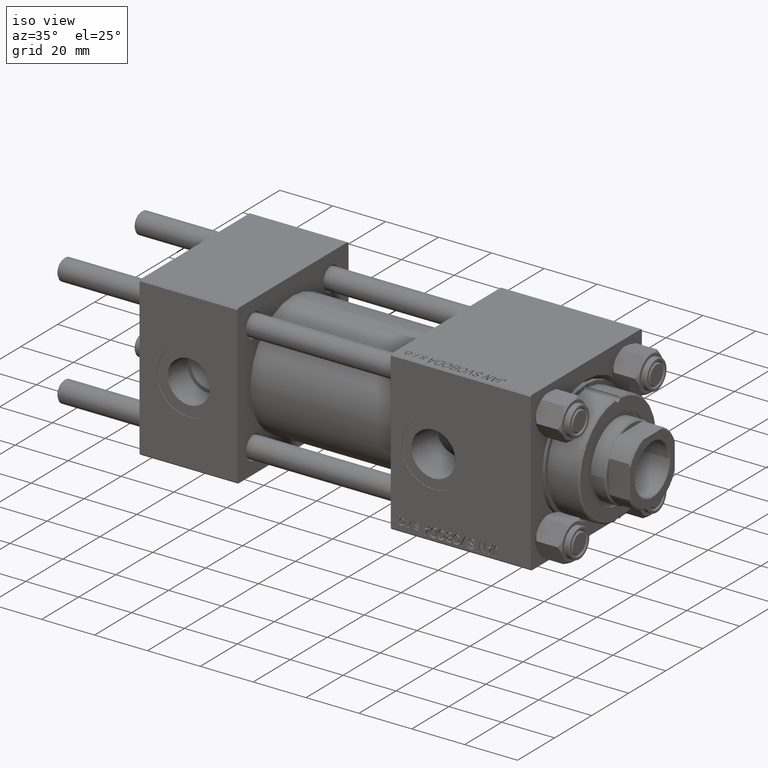
[diagram: clean part render]
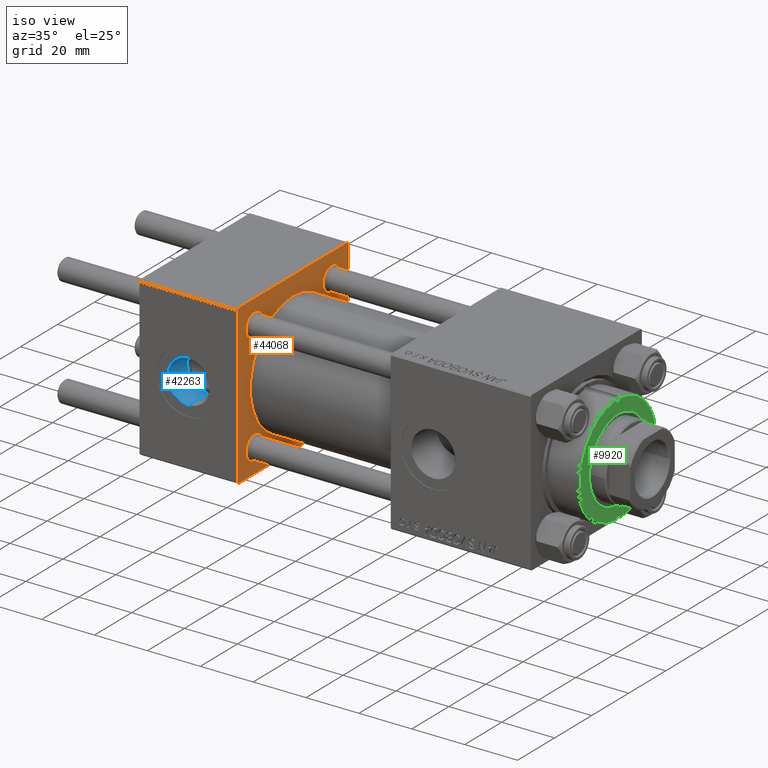
[diagram: same view with three faces highlighted in distinct colors, each labeled with its STEP entity id]
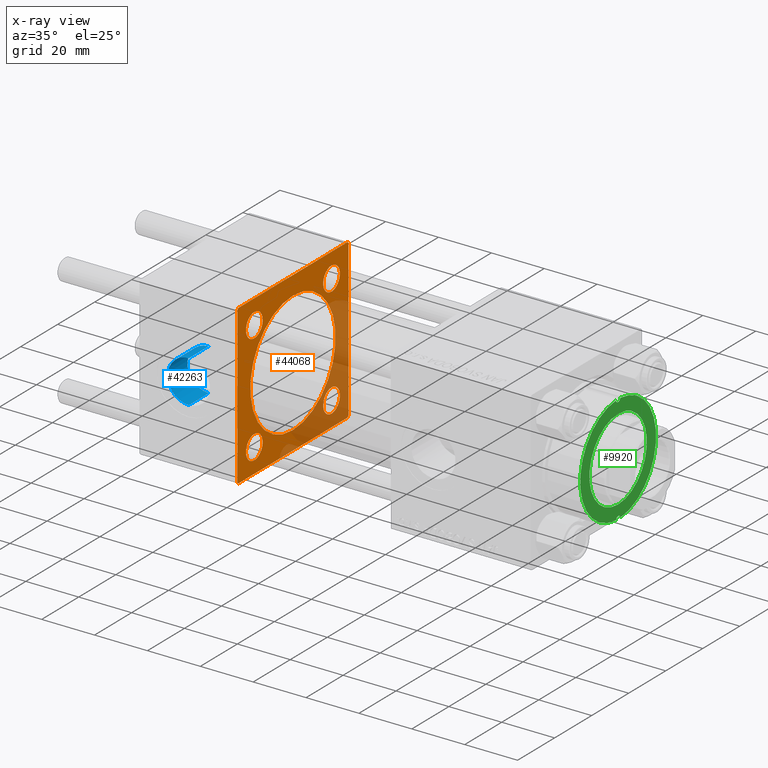
[diagram: x-ray of the same camera — body ghosted, the three highlighted faces saturated]
A machine part, iso view with three faces highlighted in distinct colors.
The next image is the same camera in x-ray (body ghosted, the three faces saturated) — at least one of them is partly hidden behind the body in this view.
Their STEP definitions:

[orange] entity #44068 — the highlighted planar face has unit normal (-1, 0, 0).
#348 = AXIS2_PLACEMENT_3D ( 'NONE', #26246, #2515, #30987 ) ;
#523 = VERTEX_POINT ( 'NONE', #8049 ) ;
#789 = CARTESIAN_POINT ( 'NONE',  ( 37.00000000000000000, -30.00000000000000000, 29.49999999999999289 ) ) ;
#1024 = VERTEX_POINT ( 'NONE', #16044 ) ;
#1230 = CARTESIAN_POINT ( 'NONE',  ( 37.00000000000000000, 0.000000000000000000, 0.000000000000000000 ) ) ;
#1411 = CARTESIAN_POINT ( 'NONE',  ( 37.00000000000000000, 20.84999999999999787, 20.85000000000000142 ) ) ;
#1543 = CARTESIAN_POINT ( 'NONE',  ( 37.00000000000000000, -20.84999999999999076, -25.34999999999999432 ) ) ;
#1676 = DIRECTION ( 'NONE',  ( -1.000000000000000000, 0.000000000000000000, -0.000000000000000000 ) ) ;
#1684 = CARTESIAN_POINT ( 'NONE',  ( 37.00000000000000000, 20.84999999999999787, -20.85000000000000142 ) ) ;
#2036 = AXIS2_PLACEMENT_3D ( 'NONE', #46725, #14805, #17986 ) ;
#2411 = EDGE_CURVE ( 'NONE', #46615, #45496, #8003, .T. ) ;
#2445 = CARTESIAN_POINT ( 'NONE',  ( 37.00000000000000000, 20.84999999999999787, 25.34999999999999076 ) ) ;
#2515 = DIRECTION ( 'NONE',  ( -1.000000000000000000, 0.000000000000000000, -0.000000000000000000 ) ) ;
#2777 = FACE_BOUND ( 'NONE', #46162, .T. ) ;
#4163 = CARTESIAN_POINT ( 'NONE',  ( 37.00000000000000000, -29.49999999999998579, 29.99999999999999289 ) ) ;
#4264 = LINE ( 'NONE', #8492, #27044 ) ;
#4334 = ORIENTED_EDGE ( 'NONE', *, *, #34177, .T. ) ;
#5089 = LINE ( 'NONE', #36743, #35167 ) ;
#5907 = AXIS2_PLACEMENT_3D ( 'NONE', #29103, #9083, #25939 ) ;
#5980 = AXIS2_PLACEMENT_3D ( 'NONE', #48036, #47004, #6919 ) ;
#6106 = CARTESIAN_POINT ( 'NONE',  ( 37.00000000000000000, 29.49999999999997868, -30.00000000000000000 ) ) ;
#6760 = DIRECTION ( 'NONE',  ( 0.000000000000000000, -1.000000000000000000, -1.156482317317871725E-16 ) ) ;
#6919 = DIRECTION ( 'NONE',  ( 0.000000000000000000, 0.000000000000000000, 1.000000000000000000 ) ) ;
#7030 = EDGE_CURVE ( 'NONE', #14187, #28483, #10064, .T. ) ;
#7264 = CIRCLE ( 'NONE', #16527, 4.499999999999990230 ) ;
#7563 = CARTESIAN_POINT ( 'NONE',  ( 37.00000000000000000, -30.00000000000000000, -29.50000000000001776 ) ) ;
#7809 = ORIENTED_EDGE ( 'NONE', *, *, #47069, .T. ) ;
#8003 = LINE ( 'NONE', #15405, #52035 ) ;
#8049 = CARTESIAN_POINT ( 'NONE',  ( 37.00000000000000000, 29.49999999999999289, 30.00000000000000000 ) ) ;
#8492 = CARTESIAN_POINT ( 'NONE',  ( 37.00000000000000000, -29.50000000000001066, -30.00000000000000711 ) ) ;
#9083 = DIRECTION ( 'NONE',  ( -1.000000000000000000, 0.000000000000000000, -0.000000000000000000 ) ) ;
#9333 = CARTESIAN_POINT ( 'NONE',  ( 37.00000000000000000, 20.84999999999999787, 16.35000000000001208 ) ) ;
#9379 = DIRECTION ( 'NONE',  ( 0.000000000000000000, 0.000000000000000000, 1.000000000000000000 ) ) ;
#10064 = CIRCLE ( 'NONE', #33663, 4.499999999999990230 ) ;
#10129 = CIRCLE ( 'NONE', #5907, 4.499999999999990230 ) ;
#10286 = ORIENTED_EDGE ( 'NONE', *, *, #18652, .F. ) ;
#10342 = EDGE_CURVE ( 'NONE', #1024, #15810, #23402, .T. ) ;
#11181 = DIRECTION ( 'NONE',  ( 0.000000000000000000, -0.7071067811865474617, 0.7071067811865474617 ) ) ;
#11526 = CARTESIAN_POINT ( 'NONE',  ( 37.00000000000000000, 29.99999999999999289, 30.00000000000000000 ) ) ;
#12466 = VERTEX_POINT ( 'NONE', #2445 ) ;
#12725 = VECTOR ( 'NONE', #37483, 1000.000000000000000 ) ;
#12956 = VERTEX_POINT ( 'NONE', #7563 ) ;
#13109 = DIRECTION ( 'NONE',  ( 0.000000000000000000, 0.000000000000000000, 1.000000000000000000 ) ) ;
#13255 = VECTOR ( 'NONE', #11181, 1000.000000000000114 ) ;
#13909 = ORIENTED_EDGE ( 'NONE', *, *, #21364, .F. ) ;
#13955 = AXIS2_PLACEMENT_3D ( 'NONE', #32307, #48933, #9379 ) ;
#14187 = VERTEX_POINT ( 'NONE', #20500 ) ;
#14263 = VERTEX_POINT ( 'NONE', #21542 ) ;
#14330 = EDGE_LOOP ( 'NONE', ( #32341, #13909 ) ) ;
#14348 = DIRECTION ( 'NONE',  ( -1.000000000000000000, 0.000000000000000000, -0.000000000000000000 ) ) ;
#14805 = DIRECTION ( 'NONE',  ( 1.000000000000000000, -0.000000000000000000, 0.000000000000000000 ) ) ;
#14905 = PLANE ( 'NONE',  #348 ) ;
#14945 = EDGE_CURVE ( 'NONE', #43884, #29849, #42456, .T. ) ;
#15405 = CARTESIAN_POINT ( 'NONE',  ( 37.00000000000000000, -30.00000000000000000, 29.49999999999999289 ) ) ;
#15561 = AXIS2_PLACEMENT_3D ( 'NONE', #23230, #47491, #48014 ) ;
#15810 = VERTEX_POINT ( 'NONE', #37516 ) ;
#15896 = EDGE_LOOP ( 'NONE', ( #10286, #37293, #25376, #24816, #28588, #39053, #17239, #32371 ) ) ;
#16044 = CARTESIAN_POINT ( 'NONE',  ( 37.00000000000000000, 29.99999999999999289, 29.50000000000000000 ) ) ;
#16527 = AXIS2_PLACEMENT_3D ( 'NONE', #31443, #50984, #35669 ) ;
#17216 = CARTESIAN_POINT ( 'NONE',  ( 37.00000000000000000, -20.84999999999999076, 25.34999999999999432 ) ) ;
#17239 = ORIENTED_EDGE ( 'NONE', *, *, #38278, .T. ) ;
#17725 = ORIENTED_EDGE ( 'NONE', *, *, #32177, .T. ) ;
#17761 = DIRECTION ( 'NONE',  ( 0.000000000000000000, 0.000000000000000000, 1.000000000000000000 ) ) ;
#17986 = DIRECTION ( 'NONE',  ( 0.000000000000000000, 0.000000000000000000, 1.000000000000000000 ) ) ;
#18097 = LINE ( 'NONE', #42876, #20057 ) ;
#18188 = VERTEX_POINT ( 'NONE', #6106 ) ;
#18267 = CIRCLE ( 'NONE', #51956, 23.00000000000000000 ) ;
#18482 = CIRCLE ( 'NONE', #20169, 4.499999999999990230 ) ;
#18652 = EDGE_CURVE ( 'NONE', #18188, #20562, #20501, .T. ) ;
#18738 = DIRECTION ( 'NONE',  ( 0.000000000000000000, 0.000000000000000000, 1.000000000000000000 ) ) ;
#18946 = EDGE_LOOP ( 'NONE', ( #44505, #22337 ) ) ;
#20057 = VECTOR ( 'NONE', #6760, 1000.000000000000000 ) ;
#20169 = AXIS2_PLACEMENT_3D ( 'NONE', #1411, #1676, #17761 ) ;
#20500 = CARTESIAN_POINT ( 'NONE',  ( 37.00000000000000000, 20.84999999999999787, -16.35000000000001208 ) ) ;
#20501 = LINE ( 'NONE', #32106, #45140 ) ;
#20562 = VERTEX_POINT ( 'NONE', #45216 ) ;
#20668 = EDGE_CURVE ( 'NONE', #40487, #14263, #7264, .T. ) ;
#21364 = EDGE_CURVE ( 'NONE', #29849, #43884, #18267, .T. ) ;
#21542 = CARTESIAN_POINT ( 'NONE',  ( 37.00000000000000000, -20.84999999999999076, 16.35000000000001208 ) ) ;
#21841 = VECTOR ( 'NONE', #27864, 1000.000000000000000 ) ;
#21987 = CIRCLE ( 'NONE', #5980, 4.499999999999990230 ) ;
#22337 = ORIENTED_EDGE ( 'NONE', *, *, #20668, .T. ) ;
#22424 = CARTESIAN_POINT ( 'NONE',  ( 37.00000000000000000, 20.84999999999999787, -20.85000000000000142 ) ) ;
#22497 = DIRECTION ( 'NONE',  ( 0.000000000000000000, 0.000000000000000000, 1.000000000000000000 ) ) ;
#23065 = FACE_BOUND ( 'NONE', #33152, .T. ) ;
#23230 = CARTESIAN_POINT ( 'NONE',  ( 37.00000000000000000, -20.84999999999999076, 20.85000000000000497 ) ) ;
#23402 = LINE ( 'NONE', #11526, #21841 ) ;
#23934 = DIRECTION ( 'NONE',  ( 0.000000000000000000, -1.000000000000000000, -1.156482317317871725E-16 ) ) ;
#24816 = ORIENTED_EDGE ( 'NONE', *, *, #25688, .T. ) ;
#25376 = ORIENTED_EDGE ( 'NONE', *, *, #10342, .F. ) ;
#25688 = EDGE_CURVE ( 'NONE', #1024, #523, #35185, .T. ) ;
#25939 = DIRECTION ( 'NONE',  ( 0.000000000000000000, 0.000000000000000000, 1.000000000000000000 ) ) ;
#26246 = CARTESIAN_POINT ( 'NONE',  ( 37.00000000000000000, 0.000000000000000000, 0.000000000000000000 ) ) ;
#26533 = EDGE_CURVE ( 'NONE', #18188, #15810, #5089, .T. ) ;
#27044 = VECTOR ( 'NONE', #40654, 1000.000000000000114 ) ;
#27269 = FACE_BOUND ( 'NONE', #14330, .T. ) ;
#27760 = AXIS2_PLACEMENT_3D ( 'NONE', #1684, #14348, #22497 ) ;
#27864 = DIRECTION ( 'NONE',  ( 0.000000000000000000, 0.000000000000000000, -1.000000000000000000 ) ) ;
#27878 = EDGE_CURVE ( 'NONE', #523, #46615, #18097, .T. ) ;
#28483 = VERTEX_POINT ( 'NONE', #46405 ) ;
#28582 = CARTESIAN_POINT ( 'NONE',  ( 37.00000000000000000, -20.84999999999999076, -16.35000000000001208 ) ) ;
#28588 = ORIENTED_EDGE ( 'NONE', *, *, #27878, .T. ) ;
#29103 = CARTESIAN_POINT ( 'NONE',  ( 37.00000000000000000, 20.84999999999999787, 20.85000000000000142 ) ) ;
#29849 = VERTEX_POINT ( 'NONE', #36539 ) ;
#30090 = DIRECTION ( 'NONE',  ( -1.000000000000000000, 0.000000000000000000, -0.000000000000000000 ) ) ;
#30987 = DIRECTION ( 'NONE',  ( -0.000000000000000000, 0.000000000000000000, 1.000000000000000000 ) ) ;
#31140 = EDGE_CURVE ( 'NONE', #12466, #35189, #18482, .T. ) ;
#31397 = VERTEX_POINT ( 'NONE', #1543 ) ;
#31443 = CARTESIAN_POINT ( 'NONE',  ( 37.00000000000000000, -20.84999999999999076, 20.85000000000000497 ) ) ;
#31546 = CIRCLE ( 'NONE', #15561, 4.499999999999990230 ) ;
#32106 = CARTESIAN_POINT ( 'NONE',  ( 37.00000000000000000, 29.99999999999999289, -30.00000000000000000 ) ) ;
#32177 = EDGE_CURVE ( 'NONE', #28483, #14187, #47167, .T. ) ;
#32307 = CARTESIAN_POINT ( 'NONE',  ( 37.00000000000000000, -20.84999999999999076, -20.85000000000000497 ) ) ;
#32341 = ORIENTED_EDGE ( 'NONE', *, *, #14945, .F. ) ;
#32371 = ORIENTED_EDGE ( 'NONE', *, *, #38107, .T. ) ;
#33137 = DIRECTION ( 'NONE',  ( 1.000000000000000000, -0.000000000000000000, 0.000000000000000000 ) ) ;
#33152 = EDGE_LOOP ( 'NONE', ( #17725, #43801 ) ) ;
#33256 = LINE ( 'NONE', #45408, #12725 ) ;
#33663 = AXIS2_PLACEMENT_3D ( 'NONE', #22424, #30090, #18738 ) ;
#34177 = EDGE_CURVE ( 'NONE', #35930, #31397, #21987, .T. ) ;
#35167 = VECTOR ( 'NONE', #49124, 999.9999999999998863 ) ;
#35185 = LINE ( 'NONE', #47311, #13255 ) ;
#35189 = VERTEX_POINT ( 'NONE', #9333 ) ;
#35669 = DIRECTION ( 'NONE',  ( 0.000000000000000000, 0.000000000000000000, 1.000000000000000000 ) ) ;
#35930 = VERTEX_POINT ( 'NONE', #28582 ) ;
#35985 = EDGE_CURVE ( 'NONE', #35189, #12466, #10129, .T. ) ;
#36539 = CARTESIAN_POINT ( 'NONE',  ( 37.00000000000000000, 2.816687638038911957E-15, -23.00000000000000000 ) ) ;
#36743 = CARTESIAN_POINT ( 'NONE',  ( 37.00000000000000000, 29.99999999999999289, -29.50000000000000000 ) ) ;
#37293 = ORIENTED_EDGE ( 'NONE', *, *, #26533, .T. ) ;
#37483 = DIRECTION ( 'NONE',  ( 0.000000000000000000, 0.000000000000000000, -1.000000000000000000 ) ) ;
#37516 = CARTESIAN_POINT ( 'NONE',  ( 37.00000000000000000, 29.99999999999999289, -29.50000000000000000 ) ) ;
#38107 = EDGE_CURVE ( 'NONE', #12956, #20562, #4264, .T. ) ;
#38278 = EDGE_CURVE ( 'NONE', #45496, #12956, #33256, .T. ) ;
#39053 = ORIENTED_EDGE ( 'NONE', *, *, #2411, .T. ) ;
#40081 = ORIENTED_EDGE ( 'NONE', *, *, #35985, .T. ) ;
#40487 = VERTEX_POINT ( 'NONE', #17216 ) ;
#40654 = DIRECTION ( 'NONE',  ( 0.000000000000000000, 0.7071067811865474617, -0.7071067811865474617 ) ) ;
#42456 = CIRCLE ( 'NONE', #2036, 23.00000000000000000 ) ;
#42876 = CARTESIAN_POINT ( 'NONE',  ( 37.00000000000000000, 29.99999999999999289, 30.00000000000000000 ) ) ;
#43113 = FACE_OUTER_BOUND ( 'NONE', #15896, .T. ) ;
#43688 = CARTESIAN_POINT ( 'NONE',  ( 37.00000000000000000, 0.000000000000000000, 23.00000000000000000 ) ) ;
#43801 = ORIENTED_EDGE ( 'NONE', *, *, #7030, .T. ) ;
#43884 = VERTEX_POINT ( 'NONE', #43688 ) ;
#44068 = ADVANCED_FACE ( 'NONE', ( #47338, #23065, #46820, #2777, #27269, #43113 ), #14905, .F. ) ;
#44281 = CIRCLE ( 'NONE', #13955, 4.499999999999990230 ) ;
#44505 = ORIENTED_EDGE ( 'NONE', *, *, #45440, .T. ) ;
#44944 = EDGE_LOOP ( 'NONE', ( #7809, #4334 ) ) ;
#45140 = VECTOR ( 'NONE', #23934, 1000.000000000000000 ) ;
#45216 = CARTESIAN_POINT ( 'NONE',  ( 37.00000000000000000, -29.50000000000000000, -30.00000000000000711 ) ) ;
#45408 = CARTESIAN_POINT ( 'NONE',  ( 37.00000000000000000, -30.00000000000000000, 29.99999999999999289 ) ) ;
#45440 = EDGE_CURVE ( 'NONE', #14263, #40487, #31546, .T. ) ;
#45496 = VERTEX_POINT ( 'NONE', #789 ) ;
#45562 = ORIENTED_EDGE ( 'NONE', *, *, #31140, .T. ) ;
#46162 = EDGE_LOOP ( 'NONE', ( #40081, #45562 ) ) ;
#46405 = CARTESIAN_POINT ( 'NONE',  ( 37.00000000000000000, 20.84999999999999787, -25.34999999999999076 ) ) ;
#46615 = VERTEX_POINT ( 'NONE', #4163 ) ;
#46725 = CARTESIAN_POINT ( 'NONE',  ( 37.00000000000000000, 0.000000000000000000, 0.000000000000000000 ) ) ;
#46820 = FACE_BOUND ( 'NONE', #18946, .T. ) ;
#47004 = DIRECTION ( 'NONE',  ( -1.000000000000000000, 0.000000000000000000, -0.000000000000000000 ) ) ;
#47069 = EDGE_CURVE ( 'NONE', #31397, #35930, #44281, .T. ) ;
#47167 = CIRCLE ( 'NONE', #27760, 4.499999999999990230 ) ;
#47311 = CARTESIAN_POINT ( 'NONE',  ( 37.00000000000000000, 29.49999999999999289, 30.00000000000000000 ) ) ;
#47338 = FACE_BOUND ( 'NONE', #44944, .T. ) ;
#47491 = DIRECTION ( 'NONE',  ( -1.000000000000000000, 0.000000000000000000, -0.000000000000000000 ) ) ;
#48014 = DIRECTION ( 'NONE',  ( 0.000000000000000000, 0.000000000000000000, 1.000000000000000000 ) ) ;
#48036 = CARTESIAN_POINT ( 'NONE',  ( 37.00000000000000000, -20.84999999999999076, -20.85000000000000497 ) ) ;
#48933 = DIRECTION ( 'NONE',  ( -1.000000000000000000, 0.000000000000000000, -0.000000000000000000 ) ) ;
#49124 = DIRECTION ( 'NONE',  ( -0.000000000000000000, 0.7071067811865574537, 0.7071067811865376918 ) ) ;
#50984 = DIRECTION ( 'NONE',  ( -1.000000000000000000, 0.000000000000000000, -0.000000000000000000 ) ) ;
#51956 = AXIS2_PLACEMENT_3D ( 'NONE', #1230, #33137, #13109 ) ;
#52035 = VECTOR ( 'NONE', #52059, 1000.000000000000114 ) ;
#52059 = DIRECTION ( 'NONE',  ( -0.000000000000000000, -0.7071067811865474617, -0.7071067811865474617 ) ) ;

[blue] entity #42263 — the highlighted cylindrical surface (edge-blend (fillet) strip) has radius 8 mm, axis along (-0, -1, -0).
#928 = CARTESIAN_POINT ( 'NONE',  ( 18.50000000000000000, -29.80000000000000071, 8.000000000000001776 ) ) ;
#1568 = CARTESIAN_POINT ( 'NONE',  ( 18.50000000000000000, -19.09999999999999787, 8.000000000000003553 ) ) ;
#1785 = DIRECTION ( 'NONE',  ( 0.000000000000000000, 0.000000000000000000, -1.000000000000000000 ) ) ;
#4344 = CARTESIAN_POINT ( 'NONE',  ( 18.50000000000000000, -19.09999999999999787, -8.000000000000000000 ) ) ;
#8173 = ORIENTED_EDGE ( 'NONE', *, *, #47526, .T. ) ;
#9503 = CARTESIAN_POINT ( 'NONE',  ( 18.50000000000000000, -19.09999999999999787, 9.454242944073598665E-16 ) ) ;
#11194 = CARTESIAN_POINT ( 'NONE',  ( 18.50000000000000000, -19.09999999999999787, 9.454242944073598665E-16 ) ) ;
#11213 = CARTESIAN_POINT ( 'NONE',  ( 18.50000000000000000, -19.09999999999999787, 8.000000000000003553 ) ) ;
#13139 = CIRCLE ( 'NONE', #26639, 8.000000000000001776 ) ;
#15019 = VECTOR ( 'NONE', #51571, 1000.000000000000000 ) ;
#15424 = ORIENTED_EDGE ( 'NONE', *, *, #28014, .F. ) ;
#16539 = EDGE_CURVE ( 'NONE', #48276, #24591, #29052, .T. ) ;
#22873 = EDGE_CURVE ( 'NONE', #25460, #29237, #13139, .T. ) ;
#24058 = VECTOR ( 'NONE', #35237, 1000.000000000000000 ) ;
#24591 = VERTEX_POINT ( 'NONE', #38137 ) ;
#25117 = CARTESIAN_POINT ( 'NONE',  ( 18.50000000000000000, -29.80000000000000071, -8.000000000000001776 ) ) ;
#25460 = VERTEX_POINT ( 'NONE', #928 ) ;
#26097 = DIRECTION ( 'NONE',  ( 0.000000000000000000, 0.000000000000000000, -1.000000000000000000 ) ) ;
#26639 = AXIS2_PLACEMENT_3D ( 'NONE', #46250, #30667, #38312 ) ;
#28014 = EDGE_CURVE ( 'NONE', #24591, #29237, #40471, .T. ) ;
#29052 = CIRCLE ( 'NONE', #37495, 8.000000000000001776 ) ;
#29237 = VERTEX_POINT ( 'NONE', #25117 ) ;
#30667 = DIRECTION ( 'NONE',  ( 0.000000000000000000, -1.000000000000000000, -8.673617379884036705E-17 ) ) ;
#31272 = LINE ( 'NONE', #1568, #24058 ) ;
#34914 = EDGE_LOOP ( 'NONE', ( #46735, #8173, #42984, #15424 ) ) ;
#35237 = DIRECTION ( 'NONE',  ( -0.000000000000000000, -1.000000000000000000, -8.673617379884036705E-17 ) ) ;
#37495 = AXIS2_PLACEMENT_3D ( 'NONE', #11194, #47064, #1785 ) ;
#38137 = CARTESIAN_POINT ( 'NONE',  ( 18.50000000000000000, -19.09999999999999787, -8.000000000000000000 ) ) ;
#38312 = DIRECTION ( 'NONE',  ( 0.000000000000000000, 0.000000000000000000, -1.000000000000000000 ) ) ;
#40471 = LINE ( 'NONE', #4344, #15019 ) ;
#41466 = AXIS2_PLACEMENT_3D ( 'NONE', #9503, #46424, #26097 ) ;
#42263 = ADVANCED_FACE ( 'NONE', ( #45892 ), #45637, .F. ) ;
#42984 = ORIENTED_EDGE ( 'NONE', *, *, #22873, .T. ) ;
#45637 = CYLINDRICAL_SURFACE ( 'NONE', #41466, 8.000000000000001776 ) ;
#45892 = FACE_OUTER_BOUND ( 'NONE', #34914, .T. ) ;
#46250 = CARTESIAN_POINT ( 'NONE',  ( 18.50000000000000000, -29.80000000000000071, 1.734723475976808635E-17 ) ) ;
#46424 = DIRECTION ( 'NONE',  ( -0.000000000000000000, -1.000000000000000000, -8.673617379884036705E-17 ) ) ;
#46735 = ORIENTED_EDGE ( 'NONE', *, *, #16539, .F. ) ;
#47064 = DIRECTION ( 'NONE',  ( 0.000000000000000000, -1.000000000000000000, -8.673617379884036705E-17 ) ) ;
#47526 = EDGE_CURVE ( 'NONE', #48276, #25460, #31272, .T. ) ;
#48276 = VERTEX_POINT ( 'NONE', #11213 ) ;
#51571 = DIRECTION ( 'NONE',  ( -0.000000000000000000, -1.000000000000000000, -8.673617379884036705E-17 ) ) ;

[green] entity #9920 — the highlighted planar face has unit normal (1, 0, -0).
#892 = AXIS2_PLACEMENT_3D ( 'NONE', #11874, #20030, #27933 ) ;
#1350 = DIRECTION ( 'NONE',  ( 1.000000000000000000, 0.000000000000000000, 0.000000000000000000 ) ) ;
#1397 = CIRCLE ( 'NONE', #30008, 15.50000000000000000 ) ;
#1566 = CARTESIAN_POINT ( 'NONE',  ( -19.50000000000000000, 0.000000000000000000, 40.70000000000000284 ) ) ;
#2493 = AXIS2_PLACEMENT_3D ( 'NONE', #42205, #6075, #49330 ) ;
#3779 = EDGE_CURVE ( 'NONE', #21134, #36714, #17552, .T. ) ;
#4099 = DIRECTION ( 'NONE',  ( -0.000000000000000000, -0.000000000000000000, 1.000000000000000000 ) ) ;
#5257 = EDGE_CURVE ( 'NONE', #30142, #36714, #23459, .T. ) ;
#6075 = DIRECTION ( 'NONE',  ( 0.000000000000000000, 0.000000000000000000, 1.000000000000000000 ) ) ;
#6084 = AXIS2_PLACEMENT_3D ( 'NONE', #36305, #32323, #24163 ) ;
#7173 = EDGE_LOOP ( 'NONE', ( #39794, #15069, #39353, #26208, #41718, #34394 ) ) ;
#7407 = VERTEX_POINT ( 'NONE', #46388 ) ;
#7589 = CIRCLE ( 'NONE', #11817, 1.250000000000001110 ) ;
#8457 = VERTEX_POINT ( 'NONE', #36484 ) ;
#9920 = ADVANCED_FACE ( 'NONE', ( #26115, #41420 ), #25079, .T. ) ;
#11817 = AXIS2_PLACEMENT_3D ( 'NONE', #32004, #15409, #24358 ) ;
#11874 = CARTESIAN_POINT ( 'NONE',  ( -20.75000000000000000, 0.000000000000000000, 40.70000000000000284 ) ) ;
#12578 = AXIS2_PLACEMENT_3D ( 'NONE', #40221, #4099, #43673 ) ;
#12637 = EDGE_LOOP ( 'NONE', ( #20851, #38206 ) ) ;
#13228 = DIRECTION ( 'NONE',  ( 0.000000000000000000, 0.000000000000000000, 1.000000000000000000 ) ) ;
#14239 = CIRCLE ( 'NONE', #12578, 1.250000000000001110 ) ;
#15000 = DIRECTION ( 'NONE',  ( 0.000000000000000000, 0.000000000000000000, 1.000000000000000000 ) ) ;
#15069 = ORIENTED_EDGE ( 'NONE', *, *, #41194, .T. ) ;
#15409 = DIRECTION ( 'NONE',  ( -0.000000000000000000, -0.000000000000000000, 1.000000000000000000 ) ) ;
#16138 = CIRCLE ( 'NONE', #32961, 15.50000000000000000 ) ;
#17552 = CIRCLE ( 'NONE', #29330, 1.250000000000001110 ) ;
#17768 = CIRCLE ( 'NONE', #892, 1.250000000000001110 ) ;
#18675 = VERTEX_POINT ( 'NONE', #48207 ) ;
#19939 = VERTEX_POINT ( 'NONE', #33855 ) ;
#20030 = DIRECTION ( 'NONE',  ( -0.000000000000000000, -0.000000000000000000, 1.000000000000000000 ) ) ;
#20385 = CIRCLE ( 'NONE', #6084, 20.49999999999999645 ) ;
#20851 = ORIENTED_EDGE ( 'NONE', *, *, #39837, .F. ) ;
#21134 = VERTEX_POINT ( 'NONE', #1566 ) ;
#21895 = DIRECTION ( 'NONE',  ( 1.000000000000000000, 0.000000000000000000, 0.000000000000000000 ) ) ;
#23459 = CIRCLE ( 'NONE', #47070, 20.49999999999999645 ) ;
#23852 = EDGE_CURVE ( 'NONE', #44651, #19939, #1397, .T. ) ;
#24163 = DIRECTION ( 'NONE',  ( 1.000000000000000000, 0.000000000000000000, 0.000000000000000000 ) ) ;
#24358 = DIRECTION ( 'NONE',  ( 1.000000000000000000, 0.000000000000000000, 0.000000000000000000 ) ) ;
#25079 = PLANE ( 'NONE',  #2493 ) ;
#25585 = CARTESIAN_POINT ( 'NONE',  ( 0.000000000000000000, 0.000000000000000000, 40.70000000000000284 ) ) ;
#26115 = FACE_OUTER_BOUND ( 'NONE', #7173, .T. ) ;
#26208 = ORIENTED_EDGE ( 'NONE', *, *, #29852, .F. ) ;
#27933 = DIRECTION ( 'NONE',  ( 1.000000000000000000, 0.000000000000000000, 0.000000000000000000 ) ) ;
#28007 = CARTESIAN_POINT ( 'NONE',  ( -20.75000000000000000, 0.000000000000000000, 40.70000000000000284 ) ) ;
#28775 = CARTESIAN_POINT ( 'NONE',  ( -15.50000000000000000, 1.898202538678397557E-15, 40.70000000000000284 ) ) ;
#29330 = AXIS2_PLACEMENT_3D ( 'NONE', #28007, #44099, #51752 ) ;
#29852 = EDGE_CURVE ( 'NONE', #30142, #8457, #14239, .T. ) ;
#30008 = AXIS2_PLACEMENT_3D ( 'NONE', #49087, #13228, #1350 ) ;
#30142 = VERTEX_POINT ( 'NONE', #34408 ) ;
#32004 = CARTESIAN_POINT ( 'NONE',  ( 20.75000000000000000, 0.000000000000000000, 40.70000000000000284 ) ) ;
#32323 = DIRECTION ( 'NONE',  ( 0.000000000000000000, 0.000000000000000000, 1.000000000000000000 ) ) ;
#32961 = AXIS2_PLACEMENT_3D ( 'NONE', #25585, #34015, #21895 ) ;
#33855 = CARTESIAN_POINT ( 'NONE',  ( 15.50000000000000000, 0.000000000000000000, 40.70000000000000284 ) ) ;
#34015 = DIRECTION ( 'NONE',  ( 0.000000000000000000, 0.000000000000000000, 1.000000000000000000 ) ) ;
#34394 = ORIENTED_EDGE ( 'NONE', *, *, #3779, .F. ) ;
#34408 = CARTESIAN_POINT ( 'NONE',  ( 20.46385542168674476, 1.216807823899045626, 40.70000000000000284 ) ) ;
#36288 = EDGE_CURVE ( 'NONE', #8457, #18675, #7589, .T. ) ;
#36305 = CARTESIAN_POINT ( 'NONE',  ( 0.000000000000000000, 0.000000000000000000, 40.70000000000000284 ) ) ;
#36484 = CARTESIAN_POINT ( 'NONE',  ( 19.50000000000000000, 1.530808498934195022E-16, 40.70000000000000284 ) ) ;
#36714 = VERTEX_POINT ( 'NONE', #40828 ) ;
#37804 = EDGE_CURVE ( 'NONE', #7407, #21134, #17768, .T. ) ;
#38206 = ORIENTED_EDGE ( 'NONE', *, *, #23852, .F. ) ;
#39353 = ORIENTED_EDGE ( 'NONE', *, *, #36288, .F. ) ;
#39794 = ORIENTED_EDGE ( 'NONE', *, *, #37804, .F. ) ;
#39837 = EDGE_CURVE ( 'NONE', #19939, #44651, #16138, .T. ) ;
#40221 = CARTESIAN_POINT ( 'NONE',  ( 20.75000000000000000, 0.000000000000000000, 40.70000000000000284 ) ) ;
#40828 = CARTESIAN_POINT ( 'NONE',  ( -20.46385542168674476, 1.216807823899045404, 40.70000000000000284 ) ) ;
#41194 = EDGE_CURVE ( 'NONE', #7407, #18675, #20385, .T. ) ;
#41420 = FACE_BOUND ( 'NONE', #12637, .T. ) ;
#41718 = ORIENTED_EDGE ( 'NONE', *, *, #5257, .T. ) ;
#42205 = CARTESIAN_POINT ( 'NONE',  ( 0.000000000000000000, 0.000000000000000000, 40.70000000000000284 ) ) ;
#43673 = DIRECTION ( 'NONE',  ( 1.000000000000000000, 0.000000000000000000, 0.000000000000000000 ) ) ;
#44099 = DIRECTION ( 'NONE',  ( -0.000000000000000000, -0.000000000000000000, 1.000000000000000000 ) ) ;
#44241 = DIRECTION ( 'NONE',  ( 1.000000000000000000, 0.000000000000000000, 0.000000000000000000 ) ) ;
#44651 = VERTEX_POINT ( 'NONE', #28775 ) ;
#46388 = CARTESIAN_POINT ( 'NONE',  ( -20.46385542168674476, -1.216807823899045626, 40.70000000000000284 ) ) ;
#47070 = AXIS2_PLACEMENT_3D ( 'NONE', #47947, #15000, #44241 ) ;
#47947 = CARTESIAN_POINT ( 'NONE',  ( 0.000000000000000000, 0.000000000000000000, 40.70000000000000284 ) ) ;
#48207 = CARTESIAN_POINT ( 'NONE',  ( 20.46385542168674476, -1.216807823899045404, 40.70000000000000284 ) ) ;
#49087 = CARTESIAN_POINT ( 'NONE',  ( 0.000000000000000000, 0.000000000000000000, 40.70000000000000284 ) ) ;
#49330 = DIRECTION ( 'NONE',  ( 1.000000000000000000, 0.000000000000000000, -0.000000000000000000 ) ) ;
#51752 = DIRECTION ( 'NONE',  ( 1.000000000000000000, 0.000000000000000000, 0.000000000000000000 ) ) ;